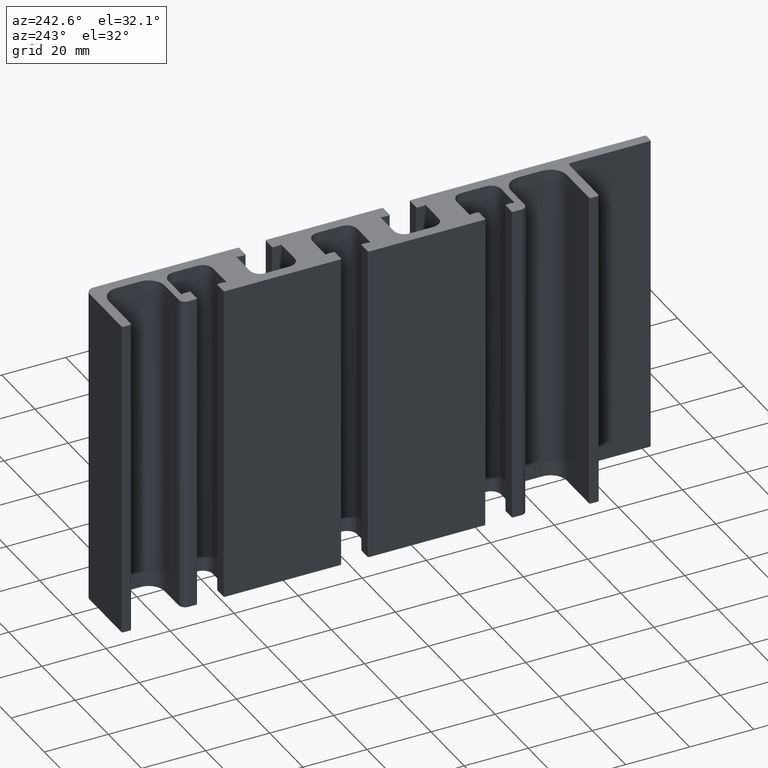
[diagram: clean part render]
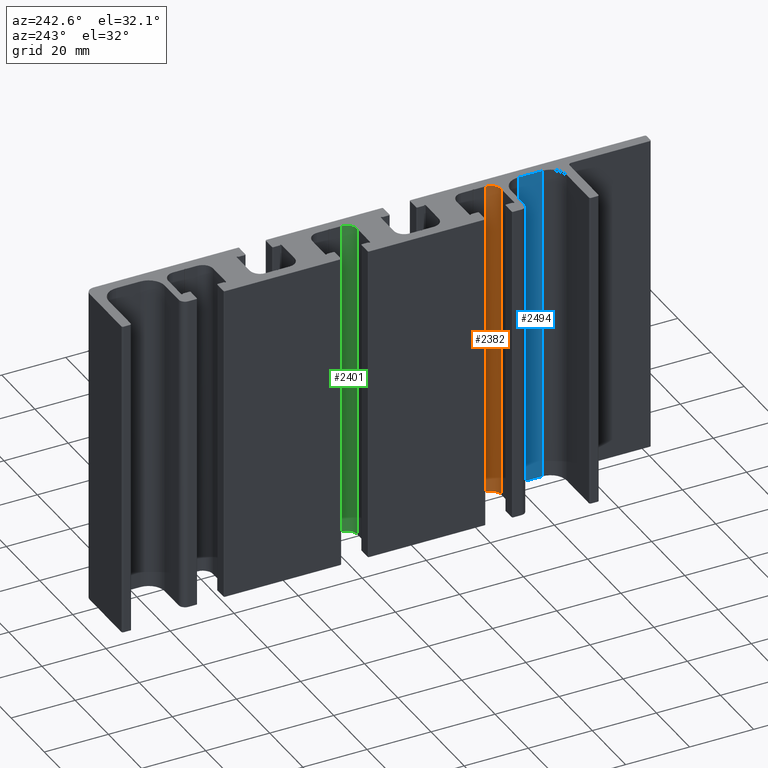
[diagram: same view with three faces highlighted in distinct colors, each labeled with its STEP entity id]
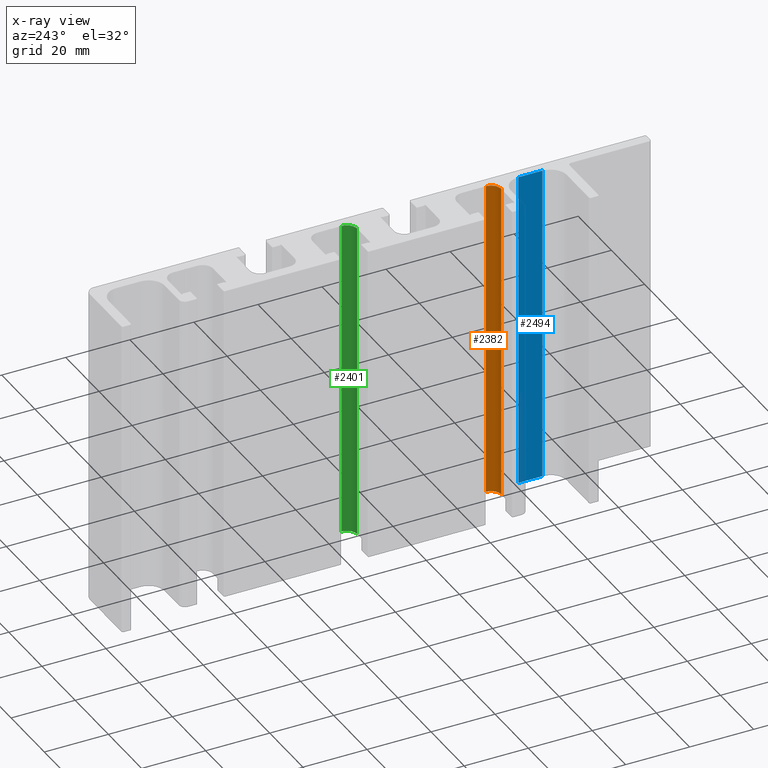
[diagram: x-ray of the same camera — body ghosted, the three highlighted faces saturated]
A machine part, auxiliary view with three faces highlighted in distinct colors.
The next image is the same camera in x-ray (body ghosted, the three faces saturated) — at least one of them is partly hidden behind the body in this view.
Their STEP definitions:

[orange] entity #2382 — the highlighted cylindrical surface (edge-blend (fillet) strip) has radius 3.2 mm, axis along (0, 0, 1).
#23=CIRCLE('',#2518,3.2);
#24=CIRCLE('',#2519,3.2);
#127=CYLINDRICAL_SURFACE('',#2517,3.2);
#186=FACE_OUTER_BOUND('',#311,.T.);
#311=EDGE_LOOP('',(#1600,#1601,#1602,#1603));
#446=LINE('',#3519,#707);
#447=LINE('',#3525,#708);
#707=VECTOR('',#2788,100.);
#708=VECTOR('',#2795,100.);
#967=VERTEX_POINT('',#3515);
#968=VERTEX_POINT('',#3517);
#969=VERTEX_POINT('',#3521);
#970=VERTEX_POINT('',#3523);
#1222=EDGE_CURVE('',#967,#968,#446,.T.);
#1223=EDGE_CURVE('',#967,#969,#23,.T.);
#1224=EDGE_CURVE('',#970,#968,#24,.T.);
#1225=EDGE_CURVE('',#969,#970,#447,.T.);
#1600=ORIENTED_EDGE('',*,*,#1223,.F.);
#1601=ORIENTED_EDGE('',*,*,#1222,.T.);
#1602=ORIENTED_EDGE('',*,*,#1224,.F.);
#1603=ORIENTED_EDGE('',*,*,#1225,.F.);
#2382=ADVANCED_FACE('',(#186),#127,.F.);
#2517=AXIS2_PLACEMENT_3D('',#3520,#2789,#2790);
#2518=AXIS2_PLACEMENT_3D('',#3522,#2791,#2792);
#2519=AXIS2_PLACEMENT_3D('',#3524,#2793,#2794);
#2788=DIRECTION('',(0.,0.,1.));
#2789=DIRECTION('center_axis',(0.,0.,1.));
#2790=DIRECTION('ref_axis',(-2.22044604925031E-14,-1.,0.));
#2791=DIRECTION('center_axis',(0.,0.,1.));
#2792=DIRECTION('ref_axis',(-2.22044604925031E-14,-1.,0.));
#2793=DIRECTION('center_axis',(0.,0.,-1.));
#2794=DIRECTION('ref_axis',(-2.22044604925031E-14,-1.,0.));
#2795=DIRECTION('',(0.,0.,1.));
#3515=CARTESIAN_POINT('',(-3.40000000000006,-52.0000000000002,0.));
#3517=CARTESIAN_POINT('',(-3.40000000000006,-52.0000000000002,100.));
#3519=CARTESIAN_POINT('',(-3.40000000000006,-52.0000000000002,0.));
#3520=CARTESIAN_POINT('Origin',(-3.39999999999999,-48.8000000000002,0.));
#3521=CARTESIAN_POINT('',(-0.199999999999987,-48.8000000000004,0.));
#3522=CARTESIAN_POINT('Origin',(-3.39999999999999,-48.8000000000002,0.));
#3523=CARTESIAN_POINT('',(-0.199999999999987,-48.8000000000004,100.));
#3524=CARTESIAN_POINT('Origin',(-3.39999999999999,-48.8000000000002,100.));
#3525=CARTESIAN_POINT('',(-0.199999999999987,-48.8000000000004,0.));

[blue] entity #2494 — the highlighted planar face has unit normal (-1, 0, 0).
#298=FACE_OUTER_BOUND('',#423,.T.);
#423=EDGE_LOOP('',(#2048,#2049,#2050,#2051));
#684=LINE('',#4191,#945);
#685=LINE('',#4194,#946);
#686=LINE('',#4196,#947);
#687=LINE('',#4197,#948);
#945=VECTOR('',#3446,100.);
#946=VECTOR('',#3449,7.49999999999989);
#947=VECTOR('',#3450,7.49999999999989);
#948=VECTOR('',#3451,100.);
#1191=VERTEX_POINT('',#4187);
#1192=VERTEX_POINT('',#4189);
#1193=VERTEX_POINT('',#4193);
#1194=VERTEX_POINT('',#4195);
#1558=EDGE_CURVE('',#1191,#1192,#684,.T.);
#1559=EDGE_CURVE('',#1191,#1193,#685,.T.);
#1560=EDGE_CURVE('',#1194,#1192,#686,.T.);
#1561=EDGE_CURVE('',#1193,#1194,#687,.T.);
#2048=ORIENTED_EDGE('',*,*,#1559,.F.);
#2049=ORIENTED_EDGE('',*,*,#1558,.T.);
#2050=ORIENTED_EDGE('',*,*,#1560,.F.);
#2051=ORIENTED_EDGE('',*,*,#1561,.F.);
#2370=PLANE('',#2727);
#2494=ADVANCED_FACE('',(#298),#2370,.T.);
#2727=AXIS2_PLACEMENT_3D('',#4192,#3447,#3448);
#3446=DIRECTION('',(0.,0.,1.));
#3447=DIRECTION('center_axis',(-1.,0.,0.));
#3448=DIRECTION('ref_axis',(0.,-1.,0.));
#3449=DIRECTION('',(0.,1.,0.));
#3450=DIRECTION('',(0.,-1.,0.));
#3451=DIRECTION('',(0.,0.,1.));
#4187=CARTESIAN_POINT('',(-0.199999999999987,-66.5000000000001,0.));
#4189=CARTESIAN_POINT('',(-0.199999999999987,-66.5000000000001,100.));
#4191=CARTESIAN_POINT('',(-0.199999999999987,-66.5000000000001,0.));
#4192=CARTESIAN_POINT('Origin',(-0.199999999999987,-59.0000000000002,0.));
#4193=CARTESIAN_POINT('',(-0.199999999999987,-59.0000000000002,0.));
#4194=CARTESIAN_POINT('',(-0.199999999999987,-66.5000000000001,0.));
#4195=CARTESIAN_POINT('',(-0.199999999999987,-59.0000000000002,100.));
#4196=CARTESIAN_POINT('',(-0.199999999999987,-66.5000000000001,100.));
#4197=CARTESIAN_POINT('',(-0.199999999999987,-59.0000000000002,0.));

[green] entity #2401 — the highlighted cylindrical surface (edge-blend (fillet) strip) has radius 3.2 mm, axis along (0, 0, 1).
#39=CIRCLE('',#2553,3.2);
#40=CIRCLE('',#2554,3.2);
#135=CYLINDRICAL_SURFACE('',#2552,3.2);
#205=FACE_OUTER_BOUND('',#330,.T.);
#330=EDGE_LOOP('',(#1676,#1677,#1678,#1679));
#487=LINE('',#3633,#748);
#488=LINE('',#3639,#749);
#748=VECTOR('',#2899,100.);
#749=VECTOR('',#2906,100.);
#1005=VERTEX_POINT('',#3629);
#1006=VERTEX_POINT('',#3631);
#1007=VERTEX_POINT('',#3635);
#1008=VERTEX_POINT('',#3637);
#1279=EDGE_CURVE('',#1005,#1006,#487,.T.);
#1280=EDGE_CURVE('',#1005,#1007,#39,.T.);
#1281=EDGE_CURVE('',#1008,#1006,#40,.T.);
#1282=EDGE_CURVE('',#1007,#1008,#488,.T.);
#1676=ORIENTED_EDGE('',*,*,#1280,.F.);
#1677=ORIENTED_EDGE('',*,*,#1279,.T.);
#1678=ORIENTED_EDGE('',*,*,#1281,.F.);
#1679=ORIENTED_EDGE('',*,*,#1282,.F.);
#2401=ADVANCED_FACE('',(#205),#135,.F.);
#2552=AXIS2_PLACEMENT_3D('',#3634,#2900,#2901);
#2553=AXIS2_PLACEMENT_3D('',#3636,#2902,#2903);
#2554=AXIS2_PLACEMENT_3D('',#3638,#2904,#2905);
#2899=DIRECTION('',(0.,0.,1.));
#2900=DIRECTION('center_axis',(0.,0.,1.));
#2901=DIRECTION('ref_axis',(1.94289029309402E-14,-1.,0.));
#2902=DIRECTION('center_axis',(0.,0.,1.));
#2903=DIRECTION('ref_axis',(1.94289029309402E-14,-1.,0.));
#2904=DIRECTION('center_axis',(0.,0.,-1.));
#2905=DIRECTION('ref_axis',(1.94289029309402E-14,-1.,0.));
#2906=DIRECTION('',(0.,0.,1.));
#3629=CARTESIAN_POINT('',(-3.39999999999992,-6.99999999999989,0.));
#3631=CARTESIAN_POINT('',(-3.39999999999992,-6.99999999999989,100.));
#3633=CARTESIAN_POINT('',(-3.39999999999992,-6.99999999999989,0.));
#3634=CARTESIAN_POINT('Origin',(-3.39999999999998,-3.79999999999988,0.));
#3635=CARTESIAN_POINT('',(-0.199999999999978,-3.79999999999995,0.));
#3636=CARTESIAN_POINT('Origin',(-3.39999999999998,-3.79999999999988,0.));
#3637=CARTESIAN_POINT('',(-0.199999999999978,-3.79999999999995,100.));
#3638=CARTESIAN_POINT('Origin',(-3.39999999999998,-3.79999999999988,100.));
#3639=CARTESIAN_POINT('',(-0.199999999999978,-3.79999999999995,0.));